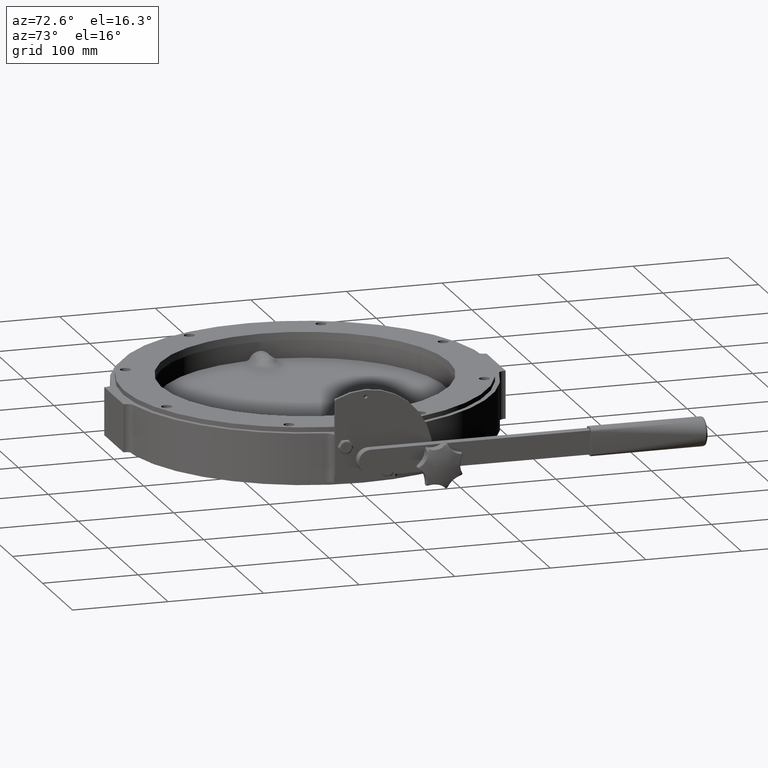
[diagram: clean part render]
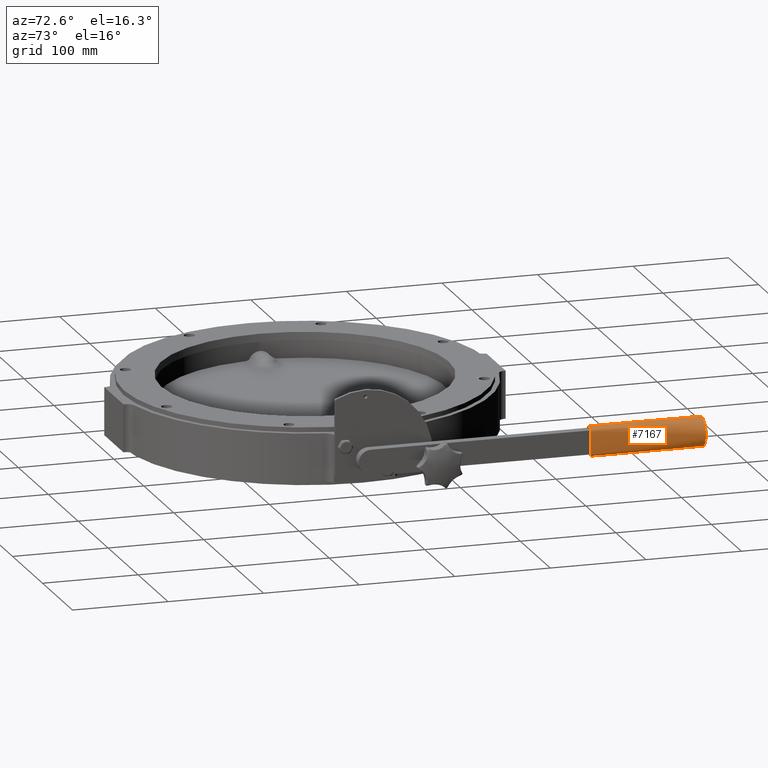
[diagram: same view with one face highlighted and labeled with its STEP entity id]
A machine part, auxiliary view. The second image highlights one B-rep face of the part: STEP entity #7167.
In plain terms, the highlighted face is a freeform B-spline surface patch.
Its self-contained STEP definition (entity closure, byte-faithful):
#899 = CARTESIAN_POINT ( 'NONE',  ( 221.4500000000000200, 229.9999999999999700, -11.50000000000000000 ) ) ;
#901 = CARTESIAN_POINT ( 'NONE',  ( 218.4500000000000200, 229.9999999999999700, -14.49999999999999800 ) ) ;
#902 = CARTESIAN_POINT ( 'NONE',  ( 207.4499999999999900, 229.9999999999999700, 11.49999999999998900 ) ) ;
#903 = CARTESIAN_POINT ( 'NONE',  ( 210.4499999999999900, 229.9999999999999700, -14.50000000000000000 ) ) ;
#905 = CARTESIAN_POINT ( 'NONE',  ( 210.4499999999999900, 229.9999999999999700, 14.49999999999998900 ) ) ;
#911 = CARTESIAN_POINT ( 'NONE',  ( 218.4500000000000200, 229.9999999999999700, 14.49999999999998900 ) ) ;
#914 = CARTESIAN_POINT ( 'NONE',  ( 207.4499999999999900, 229.9999999999999700, -11.50000000000000000 ) ) ;
#919 = CARTESIAN_POINT ( 'NONE',  ( 221.4500000000000200, 229.9999999999999700, 11.49999999999998900 ) ) ;
#1546 = VERTEX_POINT ( 'NONE', #1549 ) ;
#1549 = CARTESIAN_POINT ( 'NONE',  ( 199.5920723023111800, 347.8669597813130300, -9.040238313999354700E-005 ) ) ;
#7073 = EDGE_CURVE ( 'NONE', #7396, #7404, #10043, .T. ) ;
#7074 = EDGE_CURVE ( 'NONE', #7390, #7396, #11637, .T. ) ;
#7075 = EDGE_CURVE ( 'NONE', #7387, #7390, #10048, .T. ) ;
#7076 = EDGE_CURVE ( 'NONE', #7399, #7387, #11622, .T. ) ;
#7077 = EDGE_CURVE ( 'NONE', #7388, #7399, #10047, .T. ) ;
#7078 = EDGE_CURVE ( 'NONE', #7386, #7388, #11642, .T. ) ;
#7079 = EDGE_CURVE ( 'NONE', #7384, #7386, #10082, .T. ) ;
#7080 = EDGE_CURVE ( 'NONE', #7404, #7384, #11648, .T. ) ;
#7081 = EDGE_CURVE ( 'NONE', #1546, #1546, #11330, .T. ) ;
#7167 = ADVANCED_FACE ( 'NONE', ( #12988, #12973 ), #12806, .T. ) ;
#7384 = VERTEX_POINT ( 'NONE', #899 ) ;
#7386 = VERTEX_POINT ( 'NONE', #901 ) ;
#7387 = VERTEX_POINT ( 'NONE', #902 ) ;
#7388 = VERTEX_POINT ( 'NONE', #903 ) ;
#7390 = VERTEX_POINT ( 'NONE', #905 ) ;
#7396 = VERTEX_POINT ( 'NONE', #911 ) ;
#7399 = VERTEX_POINT ( 'NONE', #914 ) ;
#7404 = VERTEX_POINT ( 'NONE', #919 ) ;
#9638 = EDGE_LOOP ( 'NONE', ( #12860 ) ) ;
#9650 = EDGE_LOOP ( 'NONE', ( #12857, #12859, #12858, #12855, #12861, #12850, #12849, #12847 ) ) ;
#10040 = AXIS2_PLACEMENT_3D ( 'NONE', #11644, #11645, #11646 ) ;
#10041 = AXIS2_PLACEMENT_3D ( 'NONE', #11655, #11656, #11657 ) ;
#10043 = CIRCLE ( 'NONE', #10093, 3.000000000000002700 ) ;
#10047 = CIRCLE ( 'NONE', #10080, 3.000000000000002700 ) ;
#10048 = CIRCLE ( 'NONE', #10040, 3.000000000000002700 ) ;
#10080 = AXIS2_PLACEMENT_3D ( 'NONE', #11650, #11651, #11652 ) ;
#10081 = VECTOR ( 'NONE', #11647, 1000.000000000000000 ) ;
#10082 = CIRCLE ( 'NONE', #10041, 3.000000000000002700 ) ;
#10086 = VECTOR ( 'NONE', #11653, 1000.000000000000000 ) ;
#10088 = VECTOR ( 'NONE', #11658, 1000.000000000000000 ) ;
#10093 = AXIS2_PLACEMENT_3D ( 'NONE', #11638, #11639, #11640 ) ;
#10094 = VECTOR ( 'NONE', #11641, 1000.000000000000000 ) ;
#11330 = B_SPLINE_CURVE_WITH_KNOTS ( 'NONE', 3,
 ( #11659, #11654, #11660, #11661, #11662, #11663, #11664, #11665, #11666, #11667, #11668, #11669, #11670, #11671, #11672, #11673, #11674, #11675, #11676, #11677, #11678, #11679, #11680, #11681, #11682, #11683, #11684, #11685, #11686, #11687, #11688, #11689, #11690, #11691, #11692, #11693, #11694, #11695, #11696, #11697, #11698, #11699, #11700, #11701, #11702, #11703, #11704, #11705, #11706, #11707, #11708, #11709, #11710, #11711, #11712, #11713, #11714, #11715, #11716, #11717, #11718, #11719, #11720, #11721, #11722, #11723, #11724, #11725, #11726, #11727, #11728, #11729, #11730, #11731, #11732, #11733, #11734, #11735, #11736, #11737, #11738, #11739, #11740, #11741, #11742, #11743, #11744, #11745, #11746, #11747, #11748, #11749, #11750, #11751, #11752, #11753, #11754 ),
 .UNSPECIFIED., .T., .F.,
 ( 4, 2, 2, 2, 2, 2, 2, 2, 2, 2, 2, 2, 2, 2, 2, 2, 2, 2, 2, 2, 2, 2, 2, 2, 2, 2, 2, 2, 2, 2, 2, 2, 2, 2, 2, 2, 2, 2, 2, 2, 2, 2, 2, 2, 1, 2, 2, 2, 4 ),
 ( 0.0000000000000000000, 0.002958727001764784900, 0.005917454003529569800, 0.007396817504411962700, 0.008876181005294353800, 0.01183490800705908900, 0.01479363500882382500, 0.01627299850970619100, 0.01775236201058856200, 0.02071108901235329700, 0.02219045251323562400, 0.02366981601411795000, 0.02662854301588260200, 0.02958727001764725800, 0.03106663351852962200, 0.03254599701941198600, 0.03550472402117678400, 0.03698408752205921400, 0.03846345102294164400, 0.04142217802470656000, 0.04290154152558902500, 0.04438090502647149700, 0.04733963202823643400, 0.05029835903000137000, 0.05177772253088384200, 0.05325708603176630700, 0.05473644953264877200, 0.05621581303353123700, 0.05917454003529617300, 0.06065390353617868000, 0.06213326703706117300, 0.06509199403882609500, 0.06657135753970855300, 0.06805072104059102500, 0.06953008454147349700, 0.07100944804235595500, 0.07396817504412087100, 0.07544753854500335600, 0.07692690204588581400, 0.07988562904765080000, 0.08136499254853332700, 0.08284435604941585400, 0.08580308305118099200, 0.08728244655206354700, 0.08876181005294610200, 0.09024117355382865700, 0.09172053705471122600, 0.09319990055559379500, 0.09467926405647635000 ),
 .UNSPECIFIED. ) ;
#11622 = LINE ( 'NONE', #11633, #10081 ) ;
#11629 = CARTESIAN_POINT ( 'NONE',  ( 210.4499999999999900, 229.9999999999999700, 14.49999999999998900 ) ) ;
#11633 = CARTESIAN_POINT ( 'NONE',  ( 207.4499999999999900, 229.9999999999999700, -11.50000000000000000 ) ) ;
#11637 = LINE ( 'NONE', #11629, #10094 ) ;
#11638 = CARTESIAN_POINT ( 'NONE',  ( 218.4500000000000200, 229.9999999999999700, 11.49999999999998900 ) ) ;
#11639 = DIRECTION ( 'NONE',  ( -1.224646799147353000E-016, 1.000000000000000000, 0.0000000000000000000 ) ) ;
#11640 = DIRECTION ( 'NONE',  ( -1.000000000000000000, 0.0000000000000000000, 0.0000000000000000000 ) ) ;
#11641 = DIRECTION ( 'NONE',  ( 1.000000000000000000, 0.0000000000000000000, 0.0000000000000000000 ) ) ;
#11642 = LINE ( 'NONE', #11643, #10086 ) ;
#11643 = CARTESIAN_POINT ( 'NONE',  ( 218.4500000000000200, 229.9999999999999700, -14.49999999999999800 ) ) ;
#11644 = CARTESIAN_POINT ( 'NONE',  ( 210.4499999999999900, 229.9999999999999700, 11.49999999999998900 ) ) ;
#11645 = DIRECTION ( 'NONE',  ( -1.224646799147353000E-016, 1.000000000000000000, 0.0000000000000000000 ) ) ;
#11646 = DIRECTION ( 'NONE',  ( -1.000000000000000000, 0.0000000000000000000, 0.0000000000000000000 ) ) ;
#11647 = DIRECTION ( 'NONE',  ( 0.0000000000000000000, 0.0000000000000000000, 1.000000000000000000 ) ) ;
#11648 = LINE ( 'NONE', #11649, #10088 ) ;
#11649 = CARTESIAN_POINT ( 'NONE',  ( 221.4500000000000200, 229.9999999999999700, 11.49999999999998900 ) ) ;
#11650 = CARTESIAN_POINT ( 'NONE',  ( 210.4499999999999900, 229.9999999999999700, -11.50000000000000000 ) ) ;
#11651 = DIRECTION ( 'NONE',  ( -1.224646799147353000E-016, 1.000000000000000000, 0.0000000000000000000 ) ) ;
#11652 = DIRECTION ( 'NONE',  ( -1.000000000000000000, 0.0000000000000000000, 0.0000000000000000000 ) ) ;
#11653 = DIRECTION ( 'NONE',  ( -1.000000000000000000, 0.0000000000000000000, 0.0000000000000000000 ) ) ;
#11654 = CARTESIAN_POINT ( 'NONE',  ( 199.5920782439564800, 347.8669598800140600, -0.9876421728967370600 ) ) ;
#11655 = CARTESIAN_POINT ( 'NONE',  ( 218.4500000000000200, 229.9999999999999700, -11.50000000000000000 ) ) ;
#11656 = DIRECTION ( 'NONE',  ( -1.224646799147353000E-016, 1.000000000000000000, 0.0000000000000000000 ) ) ;
#11657 = DIRECTION ( 'NONE',  ( -1.000000000000000000, 0.0000000000000000000, 0.0000000000000000000 ) ) ;
#11658 = DIRECTION ( 'NONE',  ( 0.0000000000000000000, 0.0000000000000000000, -1.000000000000000000 ) ) ;
#11659 = CARTESIAN_POINT ( 'NONE',  ( 199.5920723023112100, 347.8669597813130800, -9.040238314064969300E-005 ) ) ;
#11660 = CARTESIAN_POINT ( 'NONE',  ( 199.6901298156765800, 347.8685854709477800, -1.975790396718351700 ) ) ;
#11661 = CARTESIAN_POINT ( 'NONE',  ( 200.0682403870380900, 347.8748031808017900, -3.891637130227760800 ) ) ;
#11662 = CARTESIAN_POINT ( 'NONE',  ( 200.3482093235123500, 347.8794059201556500, -4.824264525308351800 ) ) ;
#11663 = CARTESIAN_POINT ( 'NONE',  ( 200.9052457799347700, 347.8884053001918300, -6.185064104797120900 ) ) ;
#11664 = CARTESIAN_POINT ( 'NONE',  ( 201.1151119194181300, 347.8917774307318500, -6.634209286388772500 ) ) ;
#11665 = CARTESIAN_POINT ( 'NONE',  ( 201.5734311976878000, 347.8990908955570900, -7.501491945990701500 ) ) ;
#11666 = CARTESIAN_POINT ( 'NONE',  ( 201.8224654980345500, 347.9030402375709100, -7.921330653702273800 ) ) ;
#11667 = CARTESIAN_POINT ( 'NONE',  ( 202.6275764724806000, 347.9156521072602000, -9.140562105012243400 ) ) ;
#11668 = CARTESIAN_POINT ( 'NONE',  ( 203.2417072930038800, 347.9251066959337200, -9.901309177848983000 ) ) ;
#11669 = CARTESIAN_POINT ( 'NONE',  ( 204.6277116077674200, 347.9457856323159000, -11.30645906150728100 ) ) ;
#11670 = CARTESIAN_POINT ( 'NONE',  ( 205.3786577996886500, 347.9566659639268700, -11.93048514736672400 ) ) ;
#11671 = CARTESIAN_POINT ( 'NONE',  ( 206.5889425543114700, 347.9734040762834900, -12.75284336442137200 ) ) ;
#11672 = CARTESIAN_POINT ( 'NONE',  ( 207.0062040923765800, 347.9791740125440400, -13.00820920712099500 ) ) ;
#11673 = CARTESIAN_POINT ( 'NONE',  ( 207.8704499012112000, 347.9911689635081300, -13.47864538928421200 ) ) ;
#11674 = CARTESIAN_POINT ( 'NONE',  ( 208.3155869116571600, 347.9969033033183300, -13.69359971242789500 ) ) ;
#11675 = CARTESIAN_POINT ( 'NONE',  ( 209.6671732016246200, 348.0062132251735000, -14.25716831369250800 ) ) ;
#11676 = CARTESIAN_POINT ( 'NONE',  ( 210.5991171831188100, 347.9994482047440000, -14.52940446516699800 ) ) ;
#11677 = CARTESIAN_POINT ( 'NONE',  ( 212.0359995881611900, 347.9947215836880900, -14.80715750952885800 ) ) ;
#11678 = CARTESIAN_POINT ( 'NONE',  ( 212.5239223749819100, 347.9935522567476500, -14.87746094545786600 ) ) ;
#11679 = CARTESIAN_POINT ( 'NONE',  ( 213.5028185866789800, 347.9920192386924800, -14.97004965207086100 ) ) ;
#11680 = CARTESIAN_POINT ( 'NONE',  ( 213.9912439409086500, 347.9916513061347100, -14.99257051883310900 ) ) ;
#11681 = CARTESIAN_POINT ( 'NONE',  ( 215.4534941641928200, 347.9916968275616100, -14.98979808764392500 ) ) ;
#11682 = CARTESIAN_POINT ( 'NONE',  ( 216.4243408817584400, 347.9932181194114900, -14.89527786053104600 ) ) ;
#11683 = CARTESIAN_POINT ( 'NONE',  ( 218.3578115927617800, 347.9996955944163200, -14.51510708001281100 ) ) ;
#11684 = CARTESIAN_POINT ( 'NONE',  ( 219.2933090451029200, 348.0061689723720500, -14.23635503352035600 ) ) ;
#11685 = CARTESIAN_POINT ( 'NONE',  ( 220.6347358404044000, 347.9963545930417600, -13.67017575916995200 ) ) ;
#11686 = CARTESIAN_POINT ( 'NONE',  ( 221.0721844628707200, 347.9905972219434600, -13.45707827168216400 ) ) ;
#11687 = CARTESIAN_POINT ( 'NONE',  ( 221.9296172305563200, 347.9786542073287000, -12.98692801147152700 ) ) ;
#11688 = CARTESIAN_POINT ( 'NONE',  ( 222.3512660810214400, 347.9728561501461300, -12.72738759589685000 ) ) ;
#11689 = CARTESIAN_POINT ( 'NONE',  ( 223.5639476901905600, 347.9560591161158500, -11.89750716984798900 ) ) ;
#11690 = CARTESIAN_POINT ( 'NONE',  ( 224.3088868320581100, 347.9452476148767900, -11.27272687850433100 ) ) ;
#11691 = CARTESIAN_POINT ( 'NONE',  ( 225.3324505227039900, 347.9299639571072500, -10.22986849011802900 ) ) ;
#11692 = CARTESIAN_POINT ( 'NONE',  ( 225.6577966302438900, 347.9250315687306700, -9.864407982394013200 ) ) ;
#11693 = CARTESIAN_POINT ( 'NONE',  ( 226.2760817359466000, 347.9155557746896100, -9.096989101301474500 ) ) ;
#11694 = CARTESIAN_POINT ( 'NONE',  ( 226.5645159264389600, 347.9110789642418200, -8.700555127768270200 ) ) ;
#11695 = CARTESIAN_POINT ( 'NONE',  ( 227.3668660404987600, 347.8985027780094600, -7.478212307240298200 ) ) ;
#11696 = CARTESIAN_POINT ( 'NONE',  ( 227.8192189923055700, 347.8912422875362700, -6.617591580899759400 ) ) ;
#11697 = CARTESIAN_POINT ( 'NONE',  ( 228.3735218491741000, 347.8822854447121200, -5.257845261986140000 ) ) ;
#11698 = CARTESIAN_POINT ( 'NONE',  ( 228.5379374220641800, 347.8796102800503700, -4.790918917784825500 ) ) ;
#11699 = CARTESIAN_POINT ( 'NONE',  ( 228.8177294104279700, 347.8750351152596100, -3.852470709469675300 ) ) ;
#11700 = CARTESIAN_POINT ( 'NONE',  ( 228.9339125763074800, 347.8731234686357500, -3.379213637767929200 ) ) ;
#11701 = CARTESIAN_POINT ( 'NONE',  ( 229.2132712410292200, 347.8685293178219200, -1.947674645245986300 ) ) ;
#11702 = CARTESIAN_POINT ( 'NONE',  ( 229.3084696856547300, 347.8669507782796000, -0.9776818327335788900 ) ) ;
#11703 = CARTESIAN_POINT ( 'NONE',  ( 229.3073811313021800, 347.8669688604004500, 0.9942714701287943500 ) ) ;
#11704 = CARTESIAN_POINT ( 'NONE',  ( 229.2111411686287000, 347.8685645917565200, 1.970361083905388700 ) ) ;
#11705 = CARTESIAN_POINT ( 'NONE',  ( 228.9247762389874800, 347.8732735901508600, 3.419823973062094500 ) ) ;
#11706 = CARTESIAN_POINT ( 'NONE',  ( 228.8059825370508000, 347.8752279451617300, 3.896588947584203500 ) ) ;
#11707 = CARTESIAN_POINT ( 'NONE',  ( 228.5246171101321100, 347.8798272797988600, 4.830436146376218400 ) ) ;
#11708 = CARTESIAN_POINT ( 'NONE',  ( 228.3619259549751100, 347.8824735261847500, 5.288730378090415100 ) ) ;
#11709 = CARTESIAN_POINT ( 'NONE',  ( 227.9931599652799700, 347.8884308677460800, 6.188308497298694800 ) ) ;
#11710 = CARTESIAN_POINT ( 'NONE',  ( 227.7870883260283700, 347.8917421179925800, 6.629593636345332700 ) ) ;
#11711 = CARTESIAN_POINT ( 'NONE',  ( 227.3303956165417500, 347.8990300309994800, 7.494696599057819600 ) ) ;
#11712 = CARTESIAN_POINT ( 'NONE',  ( 227.0781830204636800, 347.9030301984298600, 7.920463337423091900 ) ) ;
#11713 = CARTESIAN_POINT ( 'NONE',  ( 226.2679003943690100, 347.9157227208466500, 9.147181536048696800 ) ) ;
#11714 = CARTESIAN_POINT ( 'NONE',  ( 225.6553946507920900, 347.9251482442790000, 9.903539549526529500 ) ) ;
#11715 = CARTESIAN_POINT ( 'NONE',  ( 224.6282258554841200, 347.9404759442997500, 10.94595460458413600 ) ) ;
#11716 = CARTESIAN_POINT ( 'NONE',  ( 224.2666816732010500, 347.9457899449566900, 11.27877164888273900 ) ) ;
#11717 = CARTESIAN_POINT ( 'NONE',  ( 223.5102888460119500, 347.9566924244371600, 11.90911720460924500 ) ) ;
#11718 = CARTESIAN_POINT ( 'NONE',  ( 223.1196698056345700, 347.9622205317820700, 12.20329322672004800 ) ) ;
#11719 = CARTESIAN_POINT ( 'NONE',  ( 221.9115508768149400, 347.9789302450490700, 13.02453352776417900 ) ) ;
#11720 = CARTESIAN_POINT ( 'NONE',  ( 221.0597700970297400, 347.9934769298125200, 13.49359132440590300 ) ) ;
#11721 = CARTESIAN_POINT ( 'NONE',  ( 219.7021663680543500, 348.0030537758180500, 14.06233771783910000 ) ) ;
#11722 = CARTESIAN_POINT ( 'NONE',  ( 219.2353525192741900, 348.0035652446673000, 14.22846844421261500 ) ) ;
#11723 = CARTESIAN_POINT ( 'NONE',  ( 218.2980766443293400, 348.0004830532988600, 14.50673999240993700 ) ) ;
#11724 = CARTESIAN_POINT ( 'NONE',  ( 217.8248795805804700, 347.9978851823204900, 14.62126411559623700 ) ) ;
#11725 = CARTESIAN_POINT ( 'NONE',  ( 216.8702859142013600, 347.9947394976804800, 14.80609402437079100 ) ) ;
#11726 = CARTESIAN_POINT ( 'NONE',  ( 216.3887657269251000, 347.9935811404714600, 14.87572596561013700 ) ) ;
#11727 = CARTESIAN_POINT ( 'NONE',  ( 215.4171407151056300, 347.9920417808222600, 14.96867900955931300 ) ) ;
#11728 = CARTESIAN_POINT ( 'NONE',  ( 214.9250969872496500, 347.9916572109337400, 14.99221089225790000 ) ) ;
#11729 = CARTESIAN_POINT ( 'NONE',  ( 213.4494132975238500, 347.9916841392683300, 14.99057085668076200 ) ) ;
#11730 = CARTESIAN_POINT ( 'NONE',  ( 212.4792624391299400, 347.9932224234871700, 14.89509060347424800 ) ) ;
#11731 = CARTESIAN_POINT ( 'NONE',  ( 211.0439290348121800, 347.9980066565172500, 14.61420088058398100 ) ) ;
#11732 = CARTESIAN_POINT ( 'NONE',  ( 210.5687150299464500, 348.0006779270085000, 14.49822514676643500 ) ) ;
#11733 = CARTESIAN_POINT ( 'NONE',  ( 209.6256249724267200, 348.0036009217709500, 14.21543825553724700 ) ) ;
#11734 = CARTESIAN_POINT ( 'NONE',  ( 209.1627445755850900, 348.0029150927125000, 14.04890871972919100 ) ) ;
#11735 = CARTESIAN_POINT ( 'NONE',  ( 207.8165880225904500, 347.9930834838883100, 13.48093912627961200 ) ) ;
#11736 = CARTESIAN_POINT ( 'NONE',  ( 206.9669466584641400, 347.9786421801034100, 13.01204907824939600 ) ) ;
#11737 = CARTESIAN_POINT ( 'NONE',  ( 205.7571101999822600, 347.9618945024684000, 12.18639739083323500 ) ) ;
#11738 = CARTESIAN_POINT ( 'NONE',  ( 205.3629961529922000, 347.9563115648193700, 11.88814287368716900 ) ) ;
#11739 = CARTESIAN_POINT ( 'NONE',  ( 204.6118083758849800, 347.9454754218186800, 11.25947195335348100 ) ) ;
#11740 = CARTESIAN_POINT ( 'NONE',  ( 204.2539501685228900, 347.9402124060417200, 10.92888974203682700 ) ) ;
#11741 = CARTESIAN_POINT ( 'NONE',  ( 203.2326343798273200, 347.9249645634785100, 9.889270303666435800 ) ) ;
#11742 = CARTESIAN_POINT ( 'NONE',  ( 202.6209469095546500, 347.9155506339096700, 9.132807499383897500 ) ) ;
#11743 = CARTESIAN_POINT ( 'NONE',  ( 201.8096682691866000, 347.9028385477236000, 7.900774159117907500 ) ) ;
#11744 = CARTESIAN_POINT ( 'NONE',  ( 201.5601227558814500, 347.8988792490558800, 7.477910688967813100 ) ) ;
#11745 = CARTESIAN_POINT ( 'NONE',  ( 201.1063110099835900, 347.8916362393739000, 6.615872872133620900 ) ) ;
#11746 = CARTESIAN_POINT ( 'NONE',  ( 200.6960126552714300, 347.8850428850547000, 5.735268691454406200 ) ) ;
#11747 = CARTESIAN_POINT ( 'NONE',  ( 200.3712289009658900, 347.8797596197204600, 4.818176774681252700 ) ) ;
#11748 = CARTESIAN_POINT ( 'NONE',  ( 200.0902181030971600, 347.8751655890006300, 3.882407497602691700 ) ) ;
#11749 = CARTESIAN_POINT ( 'NONE',  ( 199.9713900999094000, 347.8732106019724600, 3.402953168496915200 ) ) ;
#11750 = CARTESIAN_POINT ( 'NONE',  ( 199.7821933012866700, 347.8700993337689100, 2.440167808691284400 ) ) ;
#11751 = CARTESIAN_POINT ( 'NONE',  ( 199.7112583421506400, 347.8689301218852800, 1.955989870135520100 ) ) ;
#11752 = CARTESIAN_POINT ( 'NONE',  ( 199.6161974311771100, 347.8673603562926900, 0.9821244226684213700 ) ) ;
#11753 = CARTESIAN_POINT ( 'NONE',  ( 199.5920693314885700, 347.8669597319626500, 0.4936854828737135500 ) ) ;
#11754 = CARTESIAN_POINT ( 'NONE',  ( 199.5920723023112100, 347.8669597813130800, -9.040238314064969300E-005 ) ) ;
#12806 = B_SPLINE_SURFACE_WITH_KNOTS ( 'NONE', 3, 1, ( 
 ( #12990, #12999 ),
 ( #13000, #13001 ),
 ( #13002, #13004 ),
 ( #13005, #13007 ),
 ( #13008, #13009 ),
 ( #13010, #13011 ),
 ( #13012, #13013 ),
 ( #13015, #13017 ),
 ( #13018, #13019 ),
 ( #13020, #13021 ),
 ( #13023, #13024 ),
 ( #13025, #13026 ),
 ( #13027, #13028 ),
 ( #13029, #13030 ),
 ( #13031, #13032 ),
 ( #13034, #13035 ),
 ( #13036, #13037 ),
 ( #13038, #13039 ),
 ( #13040, #13041 ),
 ( #13042, #13043 ),
 ( #13044, #13045 ),
 ( #13046, #13047 ),
 ( #13048, #13049 ),
 ( #13050, #13051 ),
 ( #13052, #13053 ),
 ( #13054, #13055 ),
 ( #13056, #13057 ),
 ( #13058, #13059 ),
 ( #13060, #13061 ),
 ( #13062, #13063 ),
 ( #13064, #13065 ),
 ( #13066, #13067 ),
 ( #13068, #13069 ),
 ( #13070, #13071 ),
 ( #13072, #13073 ),
 ( #13074, #13075 ),
 ( #13076, #13077 ),
 ( #13078, #13079 ),
 ( #13080, #13081 ),
 ( #13082, #13083 ),
 ( #13084, #13085 ),
 ( #13086, #13087 ),
 ( #13088, #13089 ),
 ( #13090, #13091 ),
 ( #13092, #13093 ),
 ( #13094, #13095 ),
 ( #13096, #13097 ),
 ( #13098, #13099 ),
 ( #13100, #13101 ),
 ( #13102, #13103 ) ),
 .UNSPECIFIED., .F., .F., .F.,
 ( 4, 1, 1, 1, 2, 1, 1, 1, 2, 1, 1, 1, 2, 1, 1, 1, 1, 1, 1, 1, 2, 1, 1, 1, 2, 1, 1, 1, 2, 1, 1, 1, 2, 1, 1, 1, 1, 1, 1, 1, 4 ),
 ( 2, 2 ),
 ( 0.0000000000000000000, 0.01280883849869760400, 0.02561767699739520700, 0.03842651549609281400, 0.05123535399479041400, 0.07431383997739414400, 0.09739232595999791600, 0.1204708119426016700, 0.1435492979252054300, 0.1563581364239030300, 0.1691669749226006600, 0.1819758134212982600, 0.1947846519199958300, 0.2329365704299963300, 0.2710884889399968200, 0.3092404074499973700, 0.3473923259599979200, 0.3855442444699984100, 0.4236961629799989000, 0.4618480814899995100, 0.5000000000000000000, 0.5128088384986976300, 0.5256176769973952600, 0.5384265154960927700, 0.5512353539947904000, 0.5743138399773941600, 0.5973923259599978100, 0.6204708119426015600, 0.6435492979252054300, 0.6563581364239030600, 0.6691669749226006900, 0.6819758134212980900, 0.6947846519199958300, 0.7329365704299963800, 0.7710884889399968200, 0.8092404074499973700, 0.8473923259599978100, 0.8855442444699983500, 0.9236961629799990100, 0.9618480814899994500, 1.000000000000000000 ),
 ( 0.0000000000000000000, 1.000000000000000000 ),
 .UNSPECIFIED. ) ;
#12847 = ORIENTED_EDGE ( 'NONE', *, *, #7075, .T. ) ;
#12849 = ORIENTED_EDGE ( 'NONE', *, *, #7076, .T. ) ;
#12850 = ORIENTED_EDGE ( 'NONE', *, *, #7077, .T. ) ;
#12855 = ORIENTED_EDGE ( 'NONE', *, *, #7079, .T. ) ;
#12857 = ORIENTED_EDGE ( 'NONE', *, *, #7074, .T. ) ;
#12858 = ORIENTED_EDGE ( 'NONE', *, *, #7080, .T. ) ;
#12859 = ORIENTED_EDGE ( 'NONE', *, *, #7073, .T. ) ;
#12860 = ORIENTED_EDGE ( 'NONE', *, *, #7081, .T. ) ;
#12861 = ORIENTED_EDGE ( 'NONE', *, *, #7078, .T. ) ;
#12973 = FACE_OUTER_BOUND ( 'NONE', #9650, .T. ) ;
#12988 = FACE_OUTER_BOUND ( 'NONE', #9638, .T. ) ;
#12990 = CARTESIAN_POINT ( 'NONE',  ( 222.2492042020209600, 350.0000000000000600, 12.81297833507800600 ) ) ;
#12999 = CARTESIAN_POINT ( 'NONE',  ( 221.4500000000000500, 230.0000000000000000, 11.49999999838303200 ) ) ;
#13000 = CARTESIAN_POINT ( 'NONE',  ( 221.8922759618451200, 350.0000000000000600, 13.03023900301113600 ) ) ;
#13001 = CARTESIAN_POINT ( 'NONE',  ( 221.4500000000000500, 230.0000000000000000, 11.83194259448041100 ) ) ;
#13002 = CARTESIAN_POINT ( 'NONE',  ( 221.2515478706615700, 350.0000000000000000, 13.38204101034918400 ) ) ;
#13004 = CARTESIAN_POINT ( 'NONE',  ( 221.3396164650808400, 229.9999999999998300, 12.54717142796667200 ) ) ;
#13005 = CARTESIAN_POINT ( 'NONE',  ( 220.3462284275765900, 350.0000000000000600, 13.80436022491835500 ) ) ;
#13007 = CARTESIAN_POINT ( 'NONE',  ( 220.7080795441381700, 230.0000000000000900, 13.61037314510209800 ) ) ;
#13008 = CARTESIAN_POINT ( 'NONE',  ( 219.4371505389821900, 349.9999999999998900, 14.15780946487916700 ) ) ;
#13009 = CARTESIAN_POINT ( 'NONE',  ( 219.6354616877823100, 229.9999999999998600, 14.35331872370835700 ) ) ;
#13010 = CARTESIAN_POINT ( 'NONE',  ( 218.7898640102155000, 350.0000000000000000, 14.36308126251778100 ) ) ;
#13011 = CARTESIAN_POINT ( 'NONE',  ( 218.8281068912129400, 230.0000000000000000, 14.49999999999999100 ) ) ;
#13012 = CARTESIAN_POINT ( 'NONE',  ( 217.8066441645353300, 350.0000000000000600, 14.63431432339507200 ) ) ;
#13013 = CARTESIAN_POINT ( 'NONE',  ( 217.7687411453077600, 229.9999999999999700, 14.49999999999999100 ) ) ;
#13015 = CARTESIAN_POINT ( 'NONE',  ( 216.4952269432897100, 350.0000000000000000, 14.90629693520770100 ) ) ;
#13017 = CARTESIAN_POINT ( 'NONE',  ( 216.4288049217917400, 229.9999999999999700, 14.49999999999996300 ) ) ;
#13018 = CARTESIAN_POINT ( 'NONE',  ( 214.4499999999999300, 350.0000000000000000, 15.04691500478360800 ) ) ;
#13019 = CARTESIAN_POINT ( 'NONE',  ( 214.4500000000002200, 230.0000000000000300, 14.50000000000001200 ) ) ;
#13020 = CARTESIAN_POINT ( 'NONE',  ( 212.4047730567103000, 350.0000000000001700, 14.90629693520770400 ) ) ;
#13021 = CARTESIAN_POINT ( 'NONE',  ( 212.4711950782079600, 229.9999999999998300, 14.49999999999997200 ) ) ;
#13023 = CARTESIAN_POINT ( 'NONE',  ( 211.0933558354646200, 350.0000000000000000, 14.63431432339507200 ) ) ;
#13024 = CARTESIAN_POINT ( 'NONE',  ( 211.1312588546922800, 229.9999999999999700, 14.49999999999999100 ) ) ;
#13025 = CARTESIAN_POINT ( 'NONE',  ( 210.1101359897845100, 350.0000000000000000, 14.36308126251778100 ) ) ;
#13026 = CARTESIAN_POINT ( 'NONE',  ( 210.0718931087870700, 230.0000000000000000, 14.49999999999999100 ) ) ;
#13027 = CARTESIAN_POINT ( 'NONE',  ( 209.4627745353180900, 350.0000000000001100, 14.15781491438929900 ) ) ;
#13028 = CARTESIAN_POINT ( 'NONE',  ( 209.2645383122180100, 229.9999999999999100, 14.35331872370837700 ) ) ;
#13029 = CARTESIAN_POINT ( 'NONE',  ( 208.5537095262665700, 349.9999999999997700, 13.80427850778677800 ) ) ;
#13030 = CARTESIAN_POINT ( 'NONE',  ( 208.1919204558614900, 230.0000000000000300, 13.61037314510207700 ) ) ;
#13031 = CARTESIAN_POINT ( 'NONE',  ( 207.6484978203643000, 350.0000000000001700, 13.38208868621533800 ) ) ;
#13032 = CARTESIAN_POINT ( 'NONE',  ( 207.5603835349192500, 229.9999999999998600, 12.54717142796670400 ) ) ;
#13034 = CARTESIAN_POINT ( 'NONE',  ( 207.0077240381548600, 350.0000000000000000, 13.03023900301113400 ) ) ;
#13035 = CARTESIAN_POINT ( 'NONE',  ( 207.4499999999999900, 229.9999999999999700, 11.83194259448041000 ) ) ;
#13036 = CARTESIAN_POINT ( 'NONE',  ( 205.5876629358938600, 350.0000000000000000, 12.16585398424355400 ) ) ;
#13037 = CARTESIAN_POINT ( 'NONE',  ( 207.4499999999999900, 229.9999999999999700, 10.51128842413741700 ) ) ;
#13038 = CARTESIAN_POINT ( 'NONE',  ( 203.6014291720749200, 349.9999999999998300, 10.59197513649993500 ) ) ;
#13039 = CARTESIAN_POINT ( 'NONE',  ( 207.4499999999999000, 230.0000000000000300, 8.557683604418429000 ) ) ;
#13040 = CARTESIAN_POINT ( 'NONE',  ( 201.2731200871894300, 349.9999999999998900, 7.508972188585365100 ) ) ;
#13041 = CARTESIAN_POINT ( 'NONE',  ( 207.4499999999997900, 230.0000000000000900, 5.678798321635343700 ) ) ;
#13042 = CARTESIAN_POINT ( 'NONE',  ( 199.7896312118795700, 349.9999999999997700, 3.895329148488701600 ) ) ;
#13043 = CARTESIAN_POINT ( 'NONE',  ( 207.4500000000000200, 229.9999999999999100, 2.831501936424588400 ) ) ;
#13044 = CARTESIAN_POINT ( 'NONE',  ( 199.2799852860381700, 350.0000000000005100, 1.127570259384924600E-014 ) ) ;
#13045 = CARTESIAN_POINT ( 'NONE',  ( 207.4500000000002400, 229.9999999999998300, -4.987329993433320400E-015 ) ) ;
#13046 = CARTESIAN_POINT ( 'NONE',  ( 199.7896312118790300, 350.0000000000000000, -3.895329148488675800 ) ) ;
#13047 = CARTESIAN_POINT ( 'NONE',  ( 207.4500000000000700, 229.9999999999999100, -2.831501936424602600 ) ) ;
#13048 = CARTESIAN_POINT ( 'NONE',  ( 201.2731200871900500, 349.9999999999997700, -7.508972188585345500 ) ) ;
#13049 = CARTESIAN_POINT ( 'NONE',  ( 207.4499999999998500, 230.0000000000000600, -5.678798321635362400 ) ) ;
#13050 = CARTESIAN_POINT ( 'NONE',  ( 203.6014291720744600, 350.0000000000001100, -10.59197513649991300 ) ) ;
#13051 = CARTESIAN_POINT ( 'NONE',  ( 207.4499999999999000, 230.0000000000000000, -8.557683604418441400 ) ) ;
#13052 = CARTESIAN_POINT ( 'NONE',  ( 205.5876629358938600, 350.0000000000000000, -12.16585398424355600 ) ) ;
#13053 = CARTESIAN_POINT ( 'NONE',  ( 207.4499999999999900, 229.9999999999999700, -10.51128842413742800 ) ) ;
#13054 = CARTESIAN_POINT ( 'NONE',  ( 207.0077240381548900, 350.0000000000000600, -13.03023900301113800 ) ) ;
#13055 = CARTESIAN_POINT ( 'NONE',  ( 207.4499999999999900, 229.9999999999999700, -11.83194259448041500 ) ) ;
#13056 = CARTESIAN_POINT ( 'NONE',  ( 207.6484521293385800, 349.9999999999997700, -13.38204101034921000 ) ) ;
#13057 = CARTESIAN_POINT ( 'NONE',  ( 207.5603835349197100, 230.0000000000001100, -12.54717142796670100 ) ) ;
#13058 = CARTESIAN_POINT ( 'NONE',  ( 208.5537715724231300, 350.0000000000001700, -13.80436022491834600 ) ) ;
#13059 = CARTESIAN_POINT ( 'NONE',  ( 208.1919204558610900, 229.9999999999998300, -13.61037314510213200 ) ) ;
#13060 = CARTESIAN_POINT ( 'NONE',  ( 209.4628494610179200, 349.9999999999997700, -14.15780946487920200 ) ) ;
#13061 = CARTESIAN_POINT ( 'NONE',  ( 209.2645383122182900, 229.9999999999999700, -14.35331872370836800 ) ) ;
#13062 = CARTESIAN_POINT ( 'NONE',  ( 210.1101359897844800, 350.0000000000000600, -14.36308126251778500 ) ) ;
#13063 = CARTESIAN_POINT ( 'NONE',  ( 210.0718931087870700, 229.9999999999999700, -14.50000000000000000 ) ) ;
#13064 = CARTESIAN_POINT ( 'NONE',  ( 211.0933558354646200, 350.0000000000000000, -14.63431432339507200 ) ) ;
#13065 = CARTESIAN_POINT ( 'NONE',  ( 211.1312588546922500, 229.9999999999999700, -14.49999999999999600 ) ) ;
#13066 = CARTESIAN_POINT ( 'NONE',  ( 212.4047730567101800, 350.0000000000000000, -14.90629693520772200 ) ) ;
#13067 = CARTESIAN_POINT ( 'NONE',  ( 212.4711950782082700, 230.0000000000000300, -14.50000000000001600 ) ) ;
#13068 = CARTESIAN_POINT ( 'NONE',  ( 214.4500000000000200, 349.9999999999997700, -15.04691500478357500 ) ) ;
#13069 = CARTESIAN_POINT ( 'NONE',  ( 214.4499999999998700, 229.9999999999999400, -14.49999999999998800 ) ) ;
#13070 = CARTESIAN_POINT ( 'NONE',  ( 216.4952269432895900, 350.0000000000002300, -14.90629693520772900 ) ) ;
#13071 = CARTESIAN_POINT ( 'NONE',  ( 216.4288049217919400, 230.0000000000000300, -14.50000000000000200 ) ) ;
#13072 = CARTESIAN_POINT ( 'NONE',  ( 217.8066441645353000, 350.0000000000000000, -14.63431432339506900 ) ) ;
#13073 = CARTESIAN_POINT ( 'NONE',  ( 217.7687411453077600, 229.9999999999999700, -14.49999999999999800 ) ) ;
#13074 = CARTESIAN_POINT ( 'NONE',  ( 218.7898640102155000, 350.0000000000000600, -14.36308126251777800 ) ) ;
#13075 = CARTESIAN_POINT ( 'NONE',  ( 218.8281068912129700, 230.0000000000000000, -14.50000000000000200 ) ) ;
#13076 = CARTESIAN_POINT ( 'NONE',  ( 219.4372254646819400, 349.9999999999998300, -14.15781491438931500 ) ) ;
#13077 = CARTESIAN_POINT ( 'NONE',  ( 219.6354616877824000, 230.0000000000001100, -14.35331872370833800 ) ) ;
#13078 = CARTESIAN_POINT ( 'NONE',  ( 220.3462904737332300, 350.0000000000001100, -13.80427850778680300 ) ) ;
#13079 = CARTESIAN_POINT ( 'NONE',  ( 220.7080795441380300, 230.0000000000002000, -13.61037314510213900 ) ) ;
#13080 = CARTESIAN_POINT ( 'NONE',  ( 221.2515021796358800, 349.9999999999997700, -13.38208868621529900 ) ) ;
#13081 = CARTESIAN_POINT ( 'NONE',  ( 221.3396164650808700, 229.9999999999997200, -12.54717142796668300 ) ) ;
#13082 = CARTESIAN_POINT ( 'NONE',  ( 221.8922759618451200, 350.0000000000000600, -13.03023900301113300 ) ) ;
#13083 = CARTESIAN_POINT ( 'NONE',  ( 221.4500000000000200, 230.0000000000000000, -11.83194259448042400 ) ) ;
#13084 = CARTESIAN_POINT ( 'NONE',  ( 223.3123370641061200, 350.0000000000000000, -12.16585398424355300 ) ) ;
#13085 = CARTESIAN_POINT ( 'NONE',  ( 221.4500000000000500, 229.9999999999999700, -10.51128842413742800 ) ) ;
#13086 = CARTESIAN_POINT ( 'NONE',  ( 225.2985708279255700, 350.0000000000008000, -10.59197513650001100 ) ) ;
#13087 = CARTESIAN_POINT ( 'NONE',  ( 221.4500000000000200, 230.0000000000000300, -8.557683604418439700 ) ) ;
#13088 = CARTESIAN_POINT ( 'NONE',  ( 227.6268799128098100, 349.9999999999989800, -7.508972188585366900 ) ) ;
#13089 = CARTESIAN_POINT ( 'NONE',  ( 221.4499999999999900, 230.0000000000001100, -5.678798321635356100 ) ) ;
#13090 = CARTESIAN_POINT ( 'NONE',  ( 229.1103687881211500, 350.0000000000009700, -3.895329148488746900 ) ) ;
#13091 = CARTESIAN_POINT ( 'NONE',  ( 221.4499999999999900, 229.9999999999999100, -2.831501936424599500 ) ) ;
#13092 = CARTESIAN_POINT ( 'NONE',  ( 229.6200147139611800, 349.9999999999990900, -3.903127820947816000E-015 ) ) ;
#13093 = CARTESIAN_POINT ( 'NONE',  ( 221.4499999999999900, 229.9999999999997700, -8.673617379884035500E-015 ) ) ;
#13094 = CARTESIAN_POINT ( 'NONE',  ( 229.1103687881210900, 350.0000000000008000, 3.895329148488735300 ) ) ;
#13095 = CARTESIAN_POINT ( 'NONE',  ( 221.4499999999999300, 229.9999999999999100, 2.831501936424590600 ) ) ;
#13096 = CARTESIAN_POINT ( 'NONE',  ( 227.6268799128101300, 349.9999999999997700, 7.508972188585348200 ) ) ;
#13097 = CARTESIAN_POINT ( 'NONE',  ( 221.4499999999999000, 230.0000000000000900, 5.678798321635347300 ) ) ;
#13098 = CARTESIAN_POINT ( 'NONE',  ( 225.2985708279252000, 349.9999999999996600, 10.59197513649994200 ) ) ;
#13099 = CARTESIAN_POINT ( 'NONE',  ( 221.4499999999999900, 230.0000000000000300, 8.557683604418430800 ) ) ;
#13100 = CARTESIAN_POINT ( 'NONE',  ( 223.3123370641061200, 350.0000000000000000, 12.16585398424355400 ) ) ;
#13101 = CARTESIAN_POINT ( 'NONE',  ( 221.4500000000000500, 229.9999999999999700, 10.51128842413741700 ) ) ;
#13102 = CARTESIAN_POINT ( 'NONE',  ( 222.2492042020209600, 350.0000000000000600, 12.81297833507800600 ) ) ;
#13103 = CARTESIAN_POINT ( 'NONE',  ( 221.4500000000000500, 230.0000000000000000, 11.49999999838303200 ) ) ;